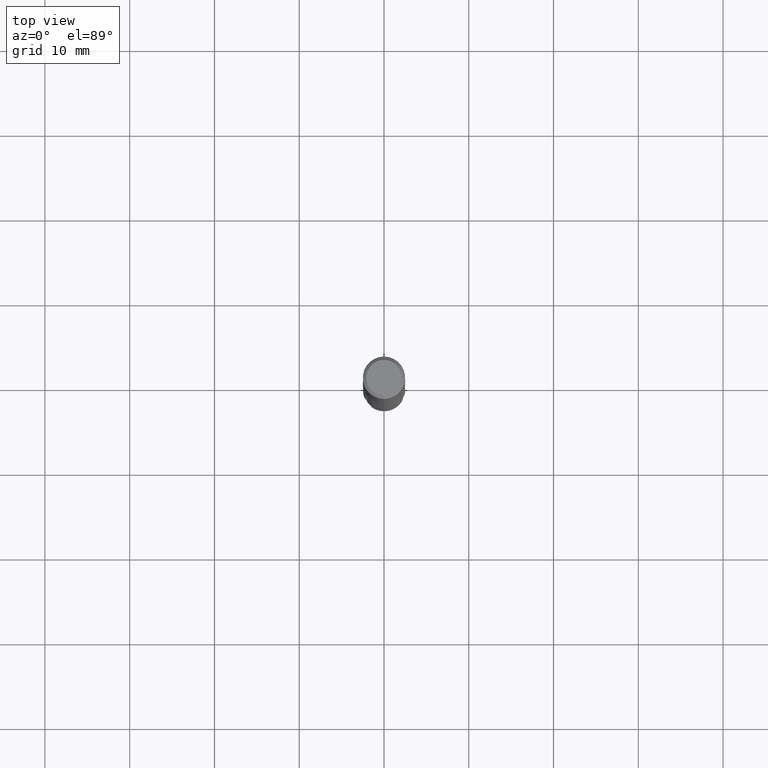
[diagram: clean part render]
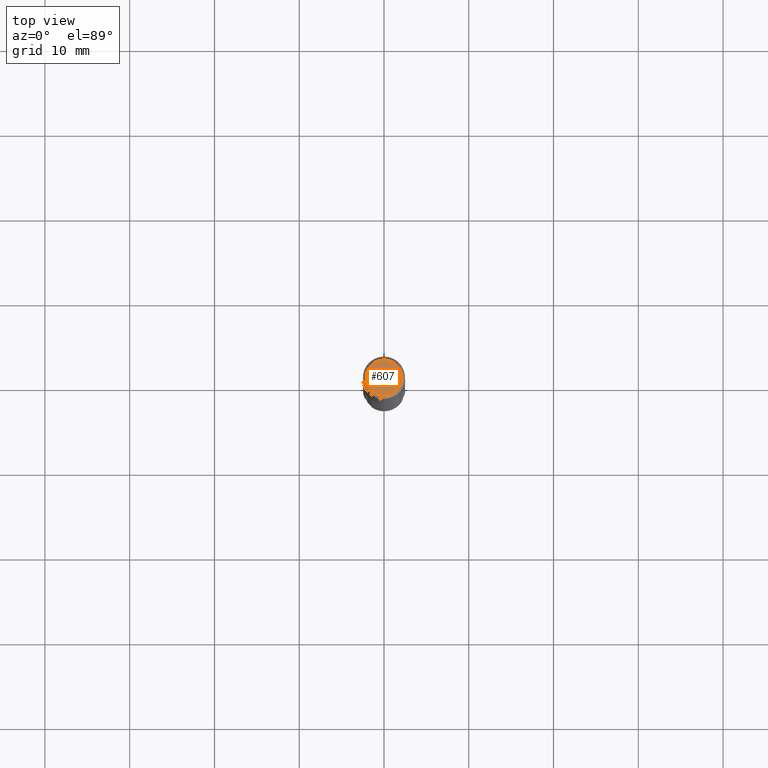
[diagram: same view with one face highlighted and labeled with its STEP entity id]
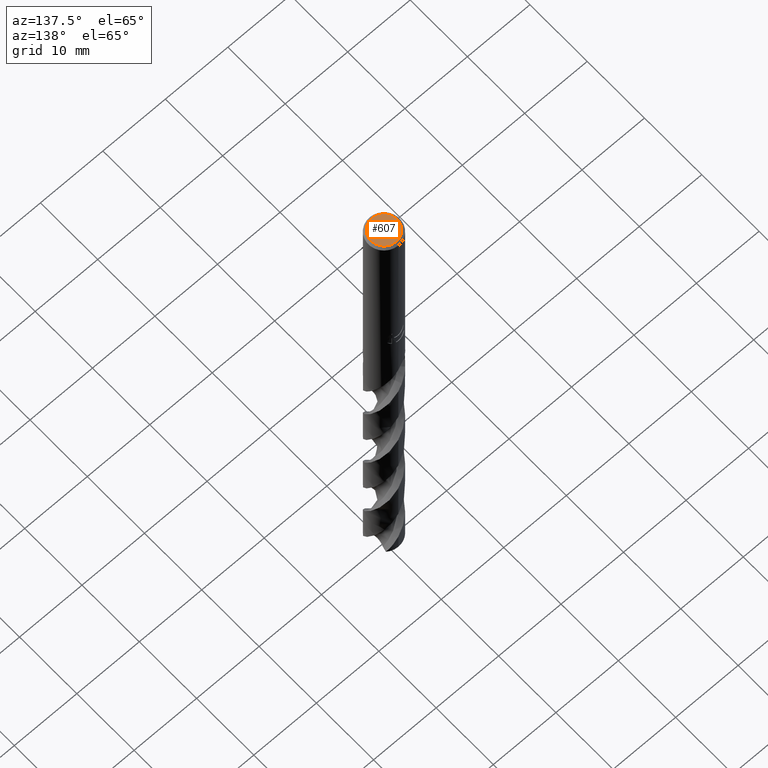
[diagram: same view with one face highlighted and labeled with its STEP entity id]
A machine part, top view. The second image highlights one B-rep face of the part: STEP entity #607.
A second angle (auxiliary view) of the same face is appended — the face is thin or edge-on in the first view.
In plain terms, the highlighted planar face has unit normal (-0, 0, 1).
Its self-contained STEP definition (entity closure, byte-faithful):
#457=EDGE_CURVE('',#739,#675,#1016,.T.);
#461=EDGE_CURVE('',#675,#739,#1021,.T.);
#607=ADVANCED_FACE('',(#1176),#1177,.T.);
#675=VERTEX_POINT('',#1248);
#739=VERTEX_POINT('',#1321);
#1016=CIRCLE('',#5386,2.1);
#1021=CIRCLE('',#5393,2.1);
#1176=FACE_OUTER_BOUND('',#6472,.T.);
#1177=PLANE('',#6473);
#1248=CARTESIAN_POINT('',(2.57167334302699E-016,-2.1,0.0));
#1321=CARTESIAN_POINT('',(0.0,2.1,0.0));
#5386=AXIS2_PLACEMENT_3D('',#13033,#13034,#13035);
#5393=AXIS2_PLACEMENT_3D('',#13060,#13061,#13062);
#6472=EDGE_LOOP('',(#13176,#13177));
#6473=AXIS2_PLACEMENT_3D('',#13178,#13179,#13180);
#13033=CARTESIAN_POINT('',(0.0,0.0,0.0));
#13034=DIRECTION('',(0.0,0.0,-1.0));
#13035=DIRECTION('',(0.0,1.0,0.0));
#13060=CARTESIAN_POINT('',(0.0,0.0,0.0));
#13061=DIRECTION('',(0.0,0.0,-1.0));
#13062=DIRECTION('',(0.0,1.0,0.0));
#13176=ORIENTED_EDGE('',*,*,#457,.F.);
#13177=ORIENTED_EDGE('',*,*,#461,.F.);
#13178=CARTESIAN_POINT('',(0.0,1.05,0.0));
#13179=DIRECTION('',(-0.0,0.0,1.0));
#13180=DIRECTION('',(0.0,-1.0,0.0));